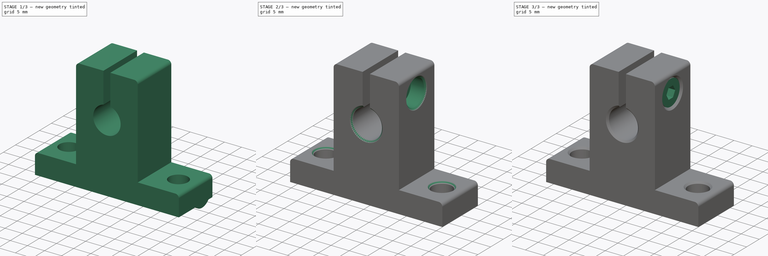
[diagram: build sequence overview — one tinted view per stage of 3, left to right]
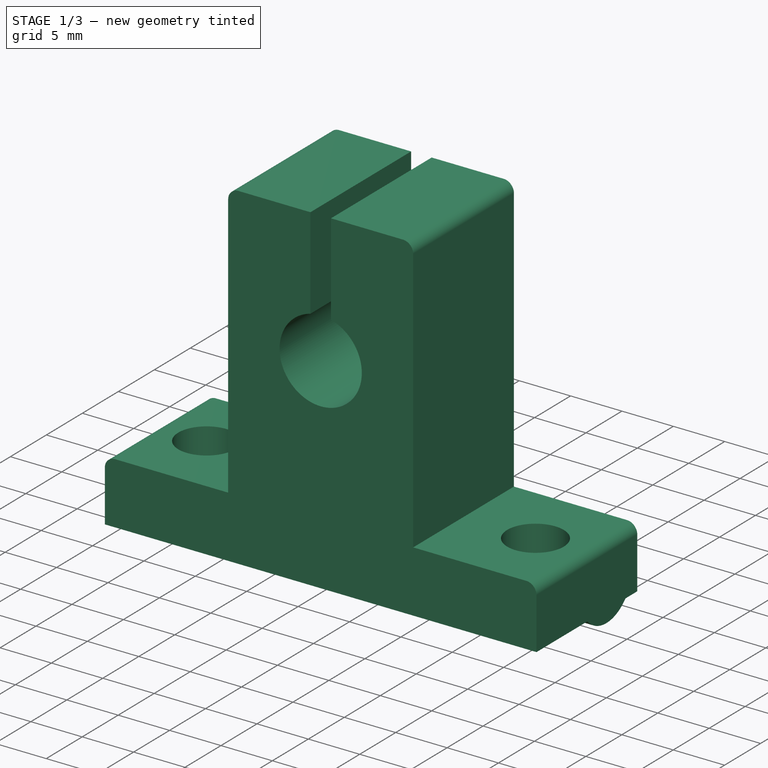
[diagram: stage 1 of 3 — iso view after this stage's code; geometry added in this stage tinted green]
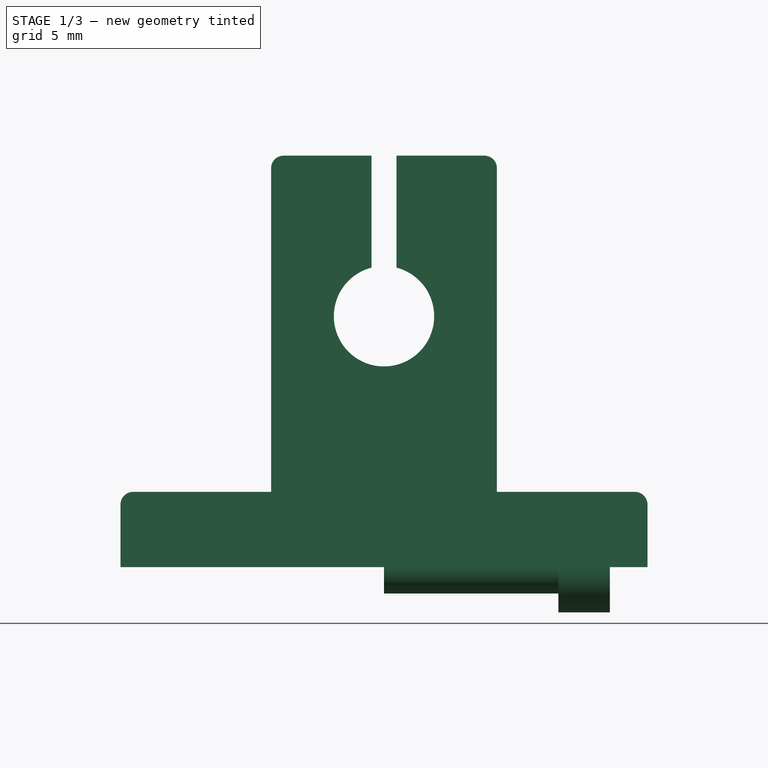
[diagram: stage 1 of 3 — front view after this stage's code; geometry added in this stage tinted green]
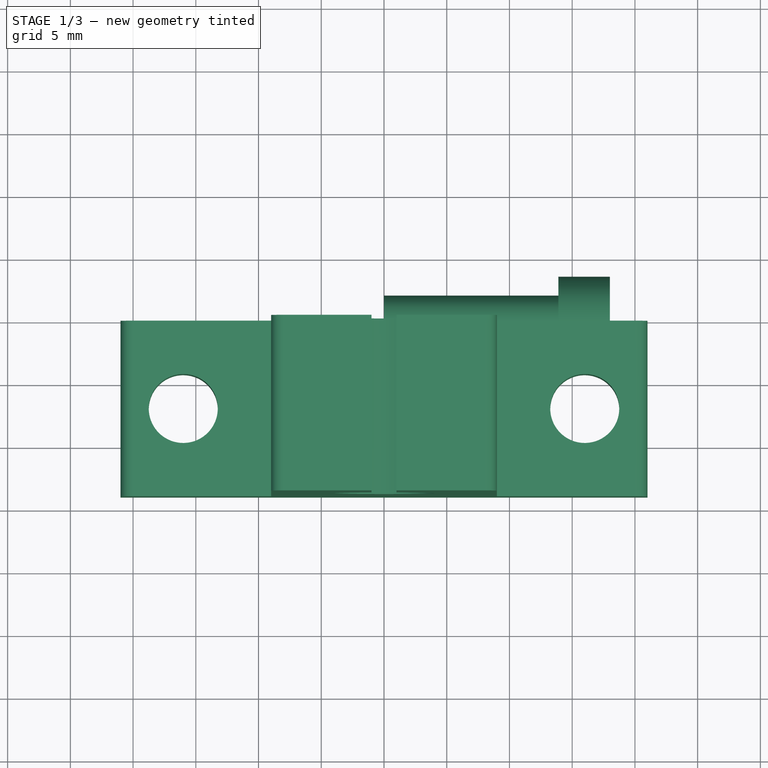
[diagram: stage 1 of 3 — top view after this stage's code; geometry added in this stage tinted green]
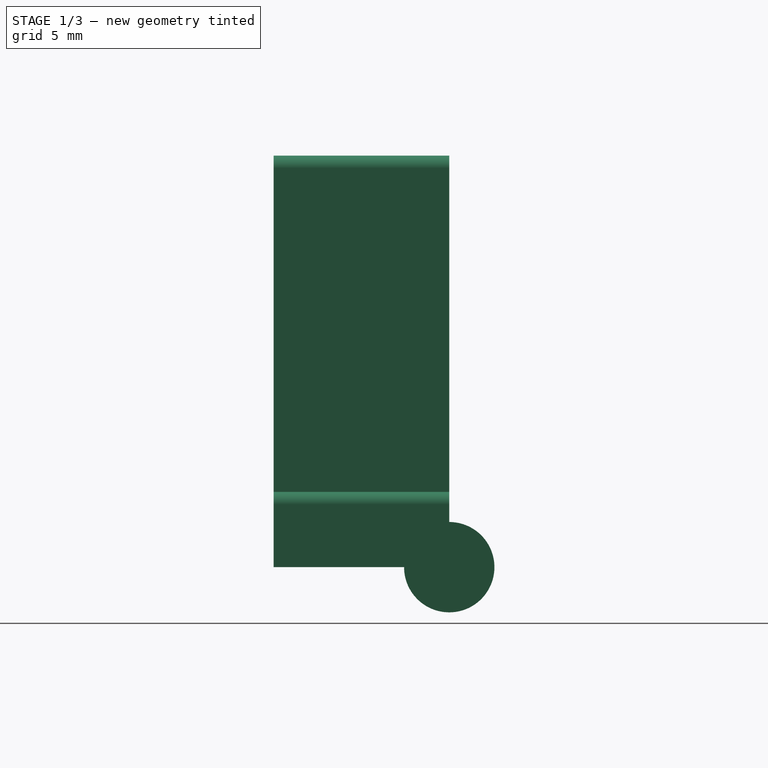
[diagram: stage 1 of 3 — right view after this stage's code; geometry added in this stage tinted green]
FCSTD DOCUMENT  (FreeCAD 0.20R)
Label: SKseries
License: Creative Commons Attribution-ShareAlike
LicenseURL: http://creativecommons.org/licenses/by-sa/4.0/
objects: Sketcher::SketchObject×5, PartDesign::Body×3, PartDesign::Pocket×2, PartDesign::Revolution×2, Spreadsheet::Sheet×1, PartDesign::Pad×1, Part::Cut×1, Part::Chamfer×1, Part::MultiFuse×1
note: 21 computed .brp shape members not serialized (recipe doc carries the construction recipe); baked Part::Feature solids carry a one-line shape summary decoded from their .brp

FEATURE [Sketcher::SketchObject] Sketch
  FullyConstrained = true
  MapMode = 5
  Placement = pos=(0,0,0) rot=(1,0,0;1.5708rad)
  Support = -> [XZ_Plane]
  expr: Constraints[19] = <<Set SK Values>>.shaftDiameter
  expr: Constraints[20] = <<Set SK Values>>.shaftHeight
  expr: Constraints[21] = <<Set SK Values>>.halftSection * 2
  expr: Constraints[28] = <<Set SK Values>>.overallHeight
  expr: Constraints[30] = <<Set SK Values>>.topWidth
  expr: Constraints[37] = <<Set SK Values>>.baseHeight
  sketch-geometry (16):
    g0: LineSegment StartX=-21 StartY=5 StartZ=0 EndX=-21 EndY=0 EndZ=0
    g1: LineSegment StartX=-21 StartY=0 StartZ=0 EndX=21 EndY=0 EndZ=0
    g2: LineSegment StartX=21 StartY=0 StartZ=0 EndX=21 EndY=5 EndZ=0
    g3: LineSegment StartX=20 StartY=6 StartZ=0 EndX=9 EndY=6 EndZ=0
    g4: LineSegment StartX=9 StartY=6 StartZ=0 EndX=9 EndY=31.8 EndZ=0
    g5: LineSegment StartX=-9 StartY=31.8 StartZ=0 EndX=-9 EndY=6 EndZ=0
    g6: LineSegment StartX=-9 StartY=6 StartZ=0 EndX=-20 EndY=6 EndZ=0
    g7: ArcOfCircle CenterX=0 CenterY=20 CenterZ=0 NormalX=0 NormalY=0 NormalZ=1 AngleXU=0 Radius=4 StartAngle=1.82348 EndAngle=7.6013
    g8: LineSegment StartX=8 StartY=32.8 StartZ=0 EndX=1 EndY=32.8 EndZ=0
    g9: LineSegment StartX=1 StartY=32.8 StartZ=0 EndX=1 EndY=23.873 EndZ=0
    g10: LineSegment StartX=-8 StartY=32.8 StartZ=0 EndX=-1 EndY=32.8 EndZ=0
    g11: LineSegment StartX=-1 StartY=32.8 StartZ=0 EndX=-1 EndY=23.873 EndZ=0
    g12: ArcOfCircle CenterX=-8 CenterY=31.8 CenterZ=0 NormalX=0 NormalY=0 NormalZ=1 AngleXU=0 Radius=1 StartAngle=1.5708 EndAngle=3.14159
    g13: ArcOfCircle CenterX=8 CenterY=31.8 CenterZ=0 NormalX=0 NormalY=0 NormalZ=1 AngleXU=0 Radius=1 StartAngle=4e-16 EndAngle=1.5708
    g14: ArcOfCircle CenterX=-20 CenterY=5 CenterZ=0 NormalX=0 NormalY=0 NormalZ=1 AngleXU=0 Radius=1 StartAngle=1.5708 EndAngle=3.14159
    g15: ArcOfCircle CenterX=20 CenterY=5 CenterZ=0 NormalX=0 NormalY=0 NormalZ=1 AngleXU=0 Radius=1 StartAngle=0 EndAngle=1.5708
  constraints (40):
    c: Vertical(g0)
    c: Coincident(g0,g1)
    c: Coincident(g1,g2)
    c: Horizontal(g3)
    c: Coincident(g3,g4)
    c: Vertical(g4)
    c: Coincident(g5,g6)
    c: Symmetric(g5,g3,g-2)
    c: Symmetric(g0,g1,g-2)
    c: PointOnObject(g0,g-1)
    c: PointOnObject(g7,g-2)
    c: Horizontal(g8)
    c: Coincident(g8,g9)
    c: Vertical(g9)
    c: Coincident(g10,g11)
    c: Vertical(g11)
    c: Symmetric(g8,g10,g-2)
    c: Coincident(g7,g9)
    c: Coincident(g7,g11)
    c: Diameter(g7) = 8
    c: DistanceY(g-1,g7) = 20
    c: DistanceX(g0,g1) = 42
    c: DistanceX(g10,g8) = 2
    c: Tangent(g5,g12) = -1.5708
    c: Tangent(g10,g12) = 1.5708
    c: Tangent(g8,g13) = -1.5708
    c: Tangent(g4,g13) = -1.5708
    c: Symmetric(g8,g10,g-2)
    c: DistanceY(g-1,g10) = 32.8
    c: Vertical(g5)
    c: DistanceX(g5,g4) = 18
    c: Diameter(g12) = 2
    c: Tangent(g0,g14) = -1.5708
    c: Tangent(g6,g14) = -1.5708
    c: Tangent(g3,g15) = -1.5708
    c: Tangent(g2,g15) = -1.5708
    c: Symmetric(g6,g3,g-2)
    c: DistanceY(g0,g6) = 6
    c: Diameter(g14) = 2
    c: Vertical(g2)
FEATURE [Spreadsheet::Sheet] Spreadsheet  label="Set SK Values"
  cells = A1=Copy the data from the column corresponding to the desired model to the "SK Values" column; A2=Copiar los datos de la columna correspondiente al modelo deseado a la columna "SK Values"; A3=Description; B3=Descripcion; C3=Parameter; D3=SK Values; E3=SK3; F3=SK4; G3=SK5; H3=SK6; I3=SK8; J3=SK10; K3=SK12; L3=SK13; M3=SK16; N3=SK20; O3=SK25; P3=SK30; Q3=SK35; R3=SK40; S3=SK50; A4=Model name; B4=Nombre del modelo; C4=Mn; D4(modelName)=SK8; E4=SK3; F4=SK4; G4=SK5; H4=SK6; I4=SK8; J4=SK10; K4=SK12; L4=SK13; M4=SK16; N4=SK20; O4=SK25; P4=SK30; Q4=SK35; R4=SK40; S4=SK50; A5=Shaft Diameter; B5=Diametro del eje; C5=SD; D5(shaftDiameter)==8mm; E5==3mm; F5==4mm; G5==5mm; H5==6mm; I5==8mm; J5==10mm; K5==12mm; L5==13mm; M5==16mm; N5==20mm; O5==25mm; P5==30mm; Q5==35mm; R5==40mm; S5==50mm; A6=Shaft height; B6=Altura del eje; C6=H; D6(shaftHeight)==20mm; E6==20mm; F6==20mm; G6==20mm; H6==20mm; I6==20mm; J6==20mm; K6==23mm; L6==23mm; M6==27mm; N6==31mm; O6==35mm; P6==42mm; Q6==50mm; R6==60mm; S6==70mm; A7=Half-section; B7=Semipieza; C7=E; D7(halftSection)==21mm; E7==21mm; F7==21mm; G7==21mm; H7==21mm; I7==21mm; J7==21mm; K7==21mm; L7==21mm; M7==24mm; N7==30mm; O7==35mm; P7==42mm; Q7==49mm; R7==57mm; S7==63mm; A8=Lengnht; B8=Grosor; C8=L; D8(lenght)==14mm; E8==14mm; F8==14mm; G8==14mm; H8==14mm; I8==14mm; J8==14mm; K8==14mm; L8==14mm; M8==16mm; N8==20mm; O8==24mm; P8==28mm; Q8==32mm; R8==36mm; S8==40mm; A9=Overall height; B9=Altura total; C9=F; D9(overallHeight)==32.8mm; E9==32.8mm; F9==32.8mm; G9==32.8mm; H9==32.8mm; I9==32.8mm; J9==32.8mm; K9==37.5mm; L9==37.5mm; M9==44mm; N9==51mm; O9==60mm; P9==70mm; Q9==82mm; R9==96mm; S9==120mm; A10=Base height; B10=Altura de la base; C10=G; D10(baseHeight)==6mm; E10==6mm; F10==6mm; G10==6mm; H10==6mm; I10==6mm; J10==6mm; K10==6mm; L10==6mm; M10==8mm; N10==10mm; O10==12mm; P10==12mm; Q10==15mm; R10==15mm; S10==18mm; A11=Ttop width; B11=Ancho superior; C11=P; D11(topWidth)==18mm; E11==18mm; F11==18mm; G11==18mm; H11==18mm; I11==18mm; J11==18mm; K11==20mm; L11==20mm; M11==25mm; N11==30mm; O11==38mm; P11==44mm; Q11==50mm; R11==60mm; S11==74mm; A12=Distance between holes; B12=Distancia entre taladros; C12=B; D12(drillDistances)==32mm; E12==32mm; F12==32mm; G12==32mm; H12==32mm; I12==32mm; J12==32mm; K12==32mm; L12==32mm; M12==38mm; N12==45mm; O12==56mm; P12==64mm; Q12==74mm; R12==90mm; S12==100mm; A13=Hole diameter; B13=Diametro taladros; C13=S; D13(drillDiameter)==5.5mm; E13==5.5mm; F13==5.5mm; G13==5.5mm; H13==5.5mm; +125 more cells
FEATURE [PartDesign::Pad] Pad
  Direction = (0,-1,2e-16)
  Length = 14
  Length2 = 10
  Placement = pos=(0,0,0) rot=(1,0,0;1.5708rad)
  Profile = -> Sketch
  ReferenceAxis = -> Sketch [N_Axis]
  Type = 0
  expr: Length = <<Set SK Values>>.lenght
FEATURE [Sketcher::SketchObject] Sketch001
  FullyConstrained = true
  MapMode = 5
  Placement = pos=(0,0,0) rot=(1,0,0;3.14159rad)
  Support = -> [Pad]
  expr: Constraints[1] = <<Set SK Values>>.lenght / 2
  expr: Constraints[2] = <<Set SK Values>>.drillDistances
  expr: Constraints[3] = <<Set SK Values>>.drillDiameter
  sketch-geometry (2):
    g0: Circle CenterX=-16 CenterY=7 CenterZ=0 NormalX=0 NormalY=0 NormalZ=1 AngleXU=0 Radius=2.75
    g1: Circle CenterX=16 CenterY=7 CenterZ=0 NormalX=0 NormalY=0 NormalZ=1 AngleXU=0 Radius=2.75
  constraints (5):
    c: Symmetric(g0,g1,g-2)
    c: DistanceY(g-1,g0) = 7
    c: DistanceX(g0,g1) = 32
    c: Diameter(g0) = 5.5
    c: Equal(g0,g1)
FEATURE [PartDesign::Pocket] Pocket
  BaseFeature = -> Pad
  Direction = (0,2e-16,1)
  Length = 0
  Length2 = 5
  Placement = pos=(0,0,0) rot=(1,0,0;1.5708rad)
  Profile = -> Sketch001
  ReferenceAxis = -> Sketch001 [N_Axis]
  Type = 1
FEATURE [PartDesign::Body] Body  label="Main Body"
  Group = -> [Sketch,Pad,Sketch001,Pocket]
  Origin = -> Origin
  Tip = -> Pocket
FEATURE [Sketcher::SketchObject] Sketch002
  FullyConstrained = true
  MapMode = 5
  Placement = pos=(0,0,0) rot=(1,0,0;1.5708rad)
  Support = -> [XZ_Plane001]
  expr: Constraints[13] = <<Set SK Values>>.screwMetric / 2 + 0.1mm
  expr: Constraints[14] = <<Set SK Values>>.screwHeadDiameter / 2 + 0.1mm
  expr: Constraints[15] = <<Set SK Values>>.screwHeadLenght + 0.1mm
  expr: Constraints[16] = <<Set SK Values>>.topWidth
  sketch-geometry (6):
    g0: LineSegment StartX=0 StartY=0 StartZ=0 EndX=0 EndY=2.1 EndZ=0
    g1: LineSegment StartX=0 StartY=2.1 StartZ=0 EndX=13.9 EndY=2.1 EndZ=0
    g2: LineSegment StartX=13.9 StartY=2.1 StartZ=0 EndX=13.9 EndY=3.6 EndZ=0
    g3: LineSegment StartX=13.9 StartY=3.6 StartZ=0 EndX=18 EndY=3.6 EndZ=0
    g4: LineSegment StartX=18 StartY=3.6 StartZ=0 EndX=18 EndY=0 EndZ=0
    g5: LineSegment StartX=18 StartY=0 StartZ=0 EndX=0 EndY=0 EndZ=0
  constraints (17):
    c: Vertical(g0)
    c: Coincident(g0,g1)
    c: Horizontal(g1)
    c: Coincident(g1,g2)
    c: Vertical(g2)
    c: Coincident(g2,g3)
    c: Horizontal(g3)
    c: Coincident(g3,g4)
    c: Vertical(g4)
    c: Coincident(g4,g5)
    c: Coincident(g5,g0)
    c: Horizontal(g5)
    c: Coincident(g-1,g0)
    c: DistanceY(g0,g0) = 2.1
    c: DistanceY(g4,g3) = 3.6
    c: DistanceX(g2,g3) = 4.1
    c: DistanceX(g5,g5) = 18
FEATURE [PartDesign::Revolution] Revolution
  Angle = 360
  Axis = (1,0,0)
  Base = (0,0,0)
  Placement = pos=(0,0,0) rot=(1,0,0;1.5708rad)
  Profile = -> Sketch002
  ReferenceAxis = -> Sketch002 [H_Axis]
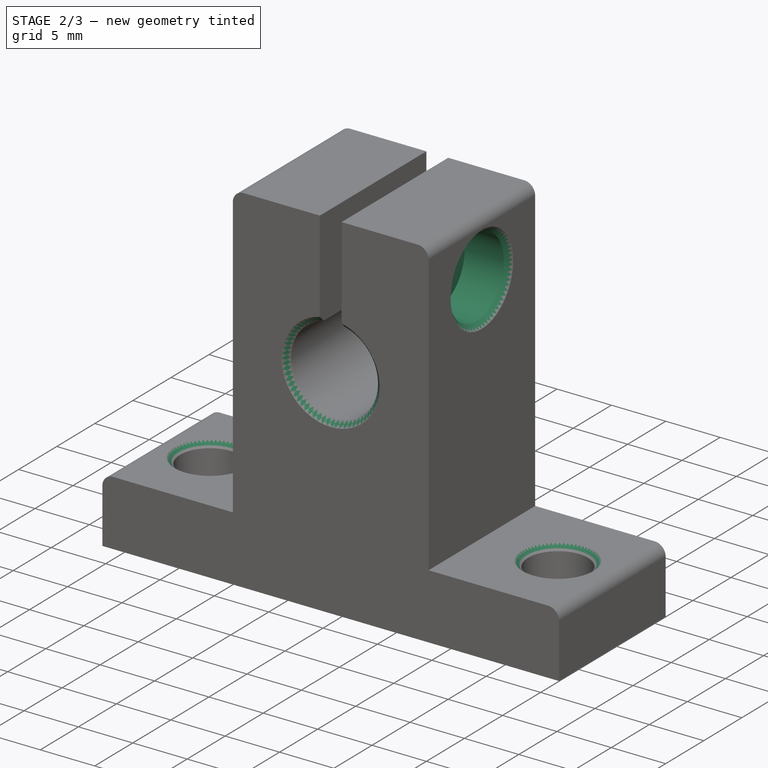
[diagram: stage 2 of 3 — iso view after this stage's code; geometry added in this stage tinted green]
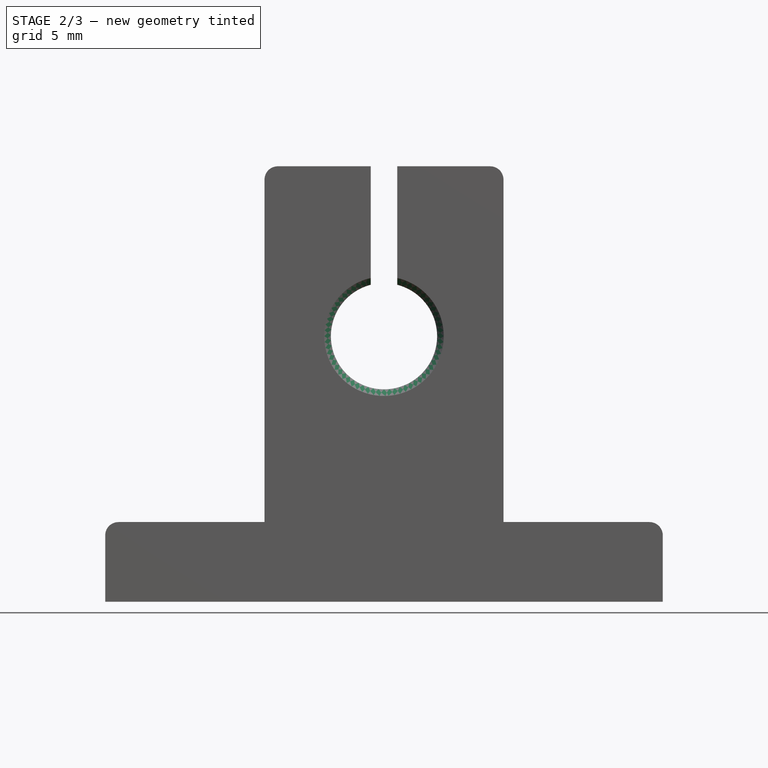
[diagram: stage 2 of 3 — front view after this stage's code; geometry added in this stage tinted green]
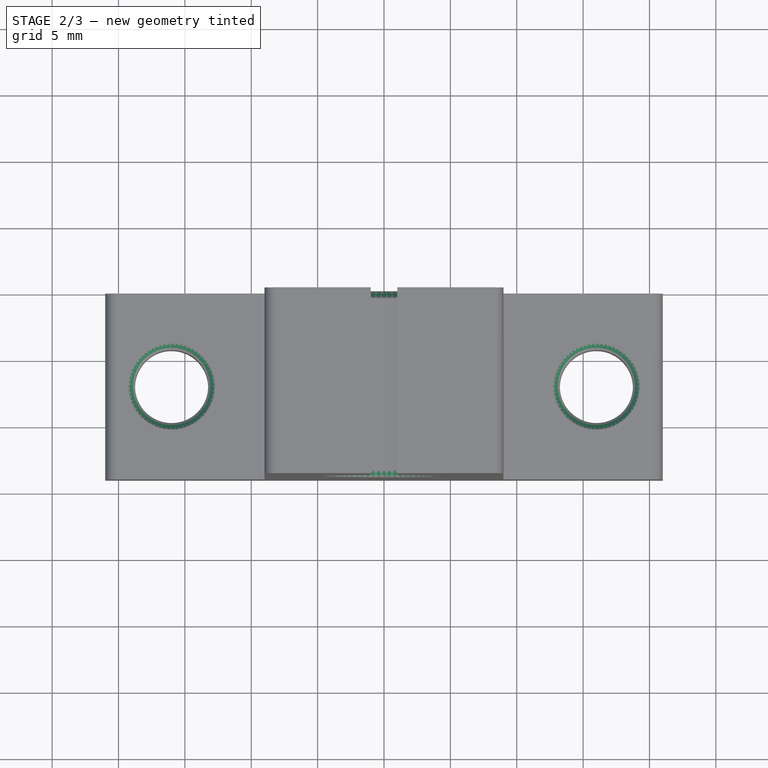
[diagram: stage 2 of 3 — top view after this stage's code; geometry added in this stage tinted green]
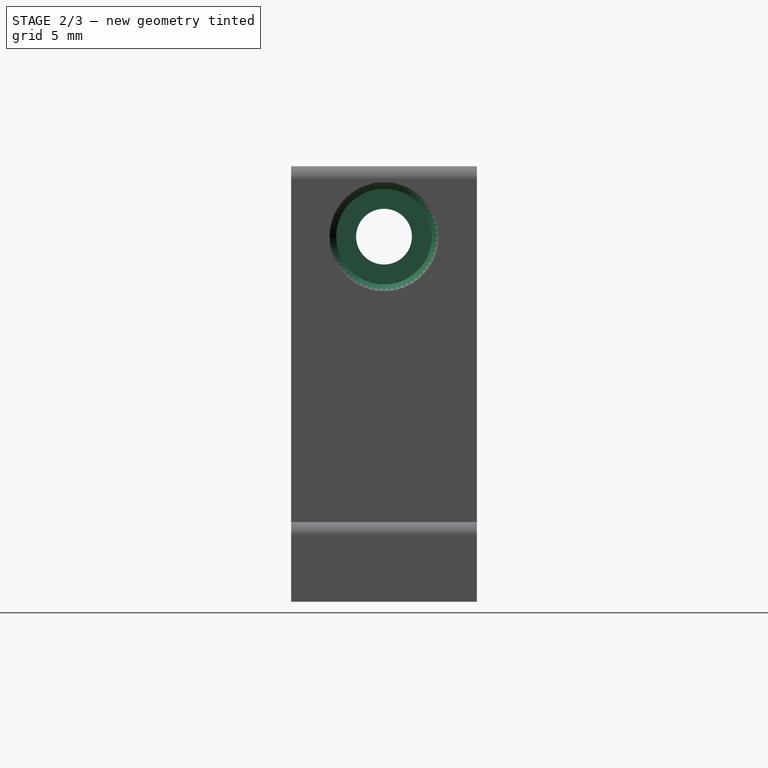
[diagram: stage 2 of 3 — right view after this stage's code; geometry added in this stage tinted green]
FEATURE [PartDesign::Body] Body002  label="Screw"
  Group = -> [Sketch003,Revolution001,Sketch004,Pocket001]
  Origin = -> Origin002
  Placement = pos=(-7.5,-7,27.5) rot=(0,0,1;0rad)
  Tip = -> Pocket001
  expr: .Placement.Base.x = (<<Set SK Values>>.topWidth / 2 - 1.5mm) * -1
  expr: .Placement.Base.y = <<Set SK Values>>.lenght / 2 * -1
  expr: .Placement.Base.z = <<Set SK Values>>.shaftHeight + <<Set SK Values>>.shaftDiameter / 2 + <<Set SK Values>>.screwHeadDiameter / 2
FEATURE [Part::Cut] Cut
  Base = -> Body
  Tool = -> Body001
FEATURE [Part::Chamfer] Chamfer
  Base = -> Cut
  Edges = 8 edges r=0.5: [Edge11,Edge23,Edge36,Edge41,Edge46,Edge47,Edge51,Edge53]
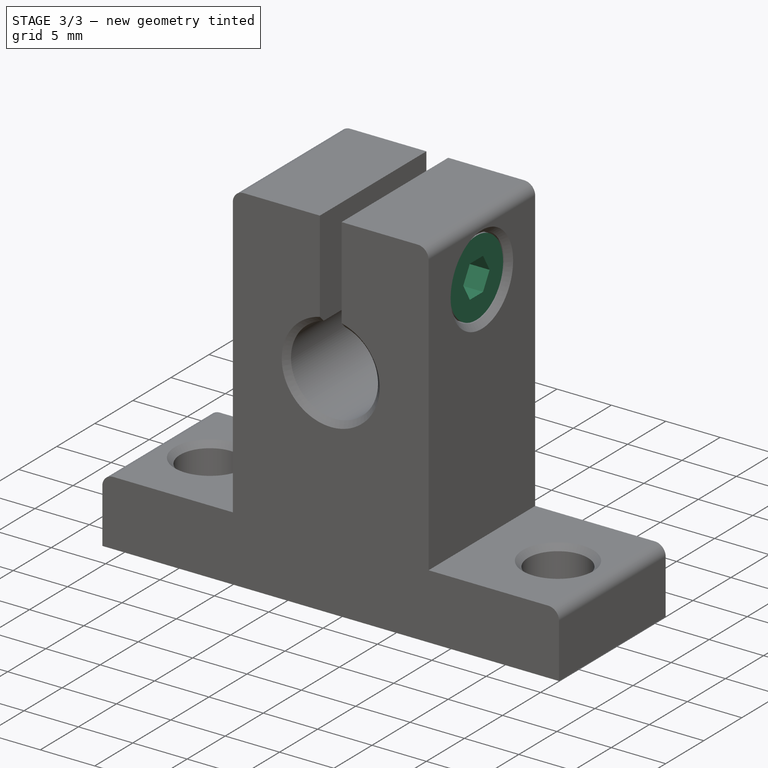
[diagram: stage 3 of 3 — iso view after this stage's code; geometry added in this stage tinted green]
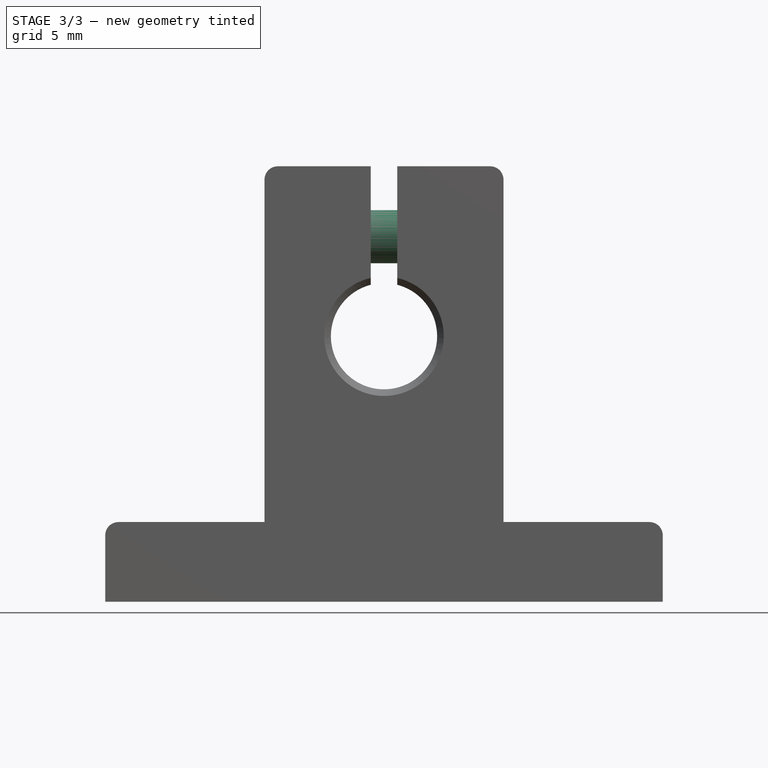
[diagram: stage 3 of 3 — front view after this stage's code; geometry added in this stage tinted green]
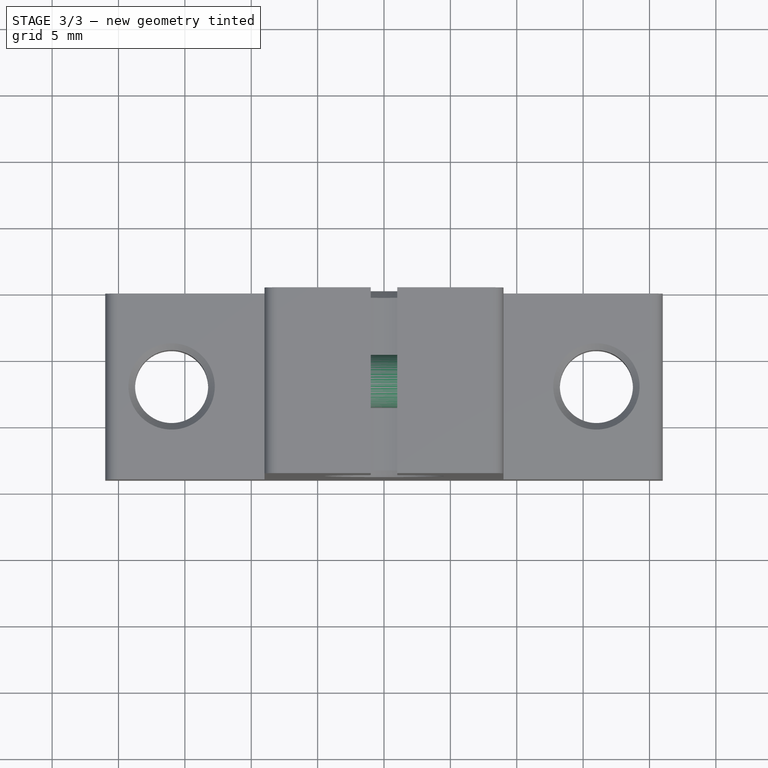
[diagram: stage 3 of 3 — top view after this stage's code; geometry added in this stage tinted green]
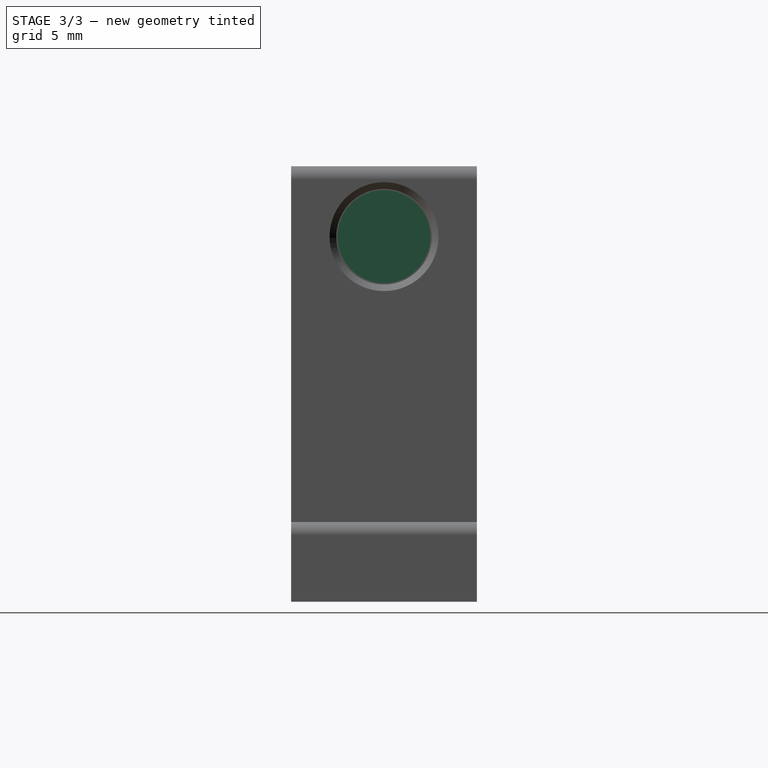
[diagram: stage 3 of 3 — right view after this stage's code; geometry added in this stage tinted green]
FEATURE [PartDesign::Body] Body001  label="Screw hole"
  Group = -> [Sketch002,Revolution]
  Origin = -> Origin001
  Placement = pos=(-9,-7,27.5) rot=(0,0,1;0rad)
  Tip = -> Revolution
  expr: .Placement.Base.x = <<Set SK Values>>.topWidth / 2 * -1
  expr: .Placement.Base.y = <<Set SK Values>>.lenght / 2 * -1
  expr: .Placement.Base.z = <<Set SK Values>>.shaftHeight + <<Set SK Values>>.shaftDiameter / 2 + <<Set SK Values>>.screwHeadDiameter / 2
FEATURE [Sketcher::SketchObject] Sketch003
  FullyConstrained = true
  MapMode = 5
  Placement = pos=(0,0,0) rot=(1,0,0;1.5708rad)
  Support = -> [XZ_Plane002]
  expr: Constraints[12] = <<Set SK Values>>.screwHeadLenght
  expr: Constraints[13] = <<Set SK Values>>.screwHeadDiameter / 2
  expr: Constraints[14] = <<Set SK Values>>.topWidth - 2mm
  expr: Constraints[17] = <<Set SK Values>>.screwMetric / 2
  expr: Constraints[18] = <<Set SK Values>>.screwMetric / 6
  expr: Constraints[19] = <<Set SK Values>>.screwMetric / 6
  sketch-geometry (7):
    g0: LineSegment StartX=0.666667 StartY=2 StartZ=0 EndX=12 EndY=2 EndZ=0
    g1: LineSegment StartX=12 StartY=2 StartZ=0 EndX=12 EndY=3.5 EndZ=0
    g2: LineSegment StartX=12 StartY=3.5 StartZ=0 EndX=16 EndY=3.5 EndZ=0
    g3: LineSegment StartX=16 StartY=3.5 StartZ=0 EndX=16 EndY=0 EndZ=0
    g4: LineSegment StartX=16 StartY=0 StartZ=0 EndX=0 EndY=0 EndZ=0
    g5: LineSegment StartX=-1.8e-15 StartY=0 StartZ=0 EndX=-1.8e-15 EndY=1.33333 EndZ=0
    g6: LineSegment StartX=-1.8e-15 StartY=1.33333 StartZ=0 EndX=0.666667 EndY=2 EndZ=0
  constraints (20):
    c: Horizontal(g0)
    c: Coincident(g0,g1)
    c: Vertical(g1)
    c: Coincident(g1,g2)
    c: Horizontal(g2)
    c: Coincident(g2,g3)
    c: Vertical(g3)
    c: Coincident(g3,g4)
    c: Horizontal(g4)
    c: Coincident(g4,g5)
    c: Vertical(g5)
    c: Coincident(g4,g-1)
    c: DistanceX(g2,g2) = 4
    c: DistanceY(g3,g3) = 3.5
    c: DistanceX(g4,g3) = 16
    c: Coincident(g5,g6)
    c: Coincident(g0,g6)
    c: DistanceY(g4,g0) = 2
    c: DistanceX(g5,g0) = 0.666667
    c: DistanceY(g5,g0) = 0.666667
FEATURE [PartDesign::Revolution] Revolution001
  Angle = 360
  Axis = (1,0,0)
  Base = (0,0,0)
  Placement = pos=(0,0,0) rot=(1,0,0;1.5708rad)
  Profile = -> Sketch003
  ReferenceAxis = -> Sketch003 [H_Axis]
FEATURE [Sketcher::SketchObject] Sketch004
  FullyConstrained = true
  MapMode = 5
  Placement = pos=(16,0,0) rot=(0.707107,0,0.707107;3.14159rad)
  Support = -> [Revolution001]
  expr: Constraints[17] = <<Set SK Values>>.allenKey
  sketch-geometry (7):
    g0: LineSegment StartX=1.5 StartY=-0.866025 StartZ=0 EndX=1.5 EndY=0.866025 EndZ=0
    g1: LineSegment StartX=1.5 StartY=0.866025 StartZ=0 EndX=-1.9693e-12 EndY=1.73205 EndZ=0
    g2: LineSegment StartX=-1.9693e-12 StartY=1.73205 StartZ=0 EndX=-1.5 EndY=0.866025 EndZ=0
    g3: LineSegment StartX=-1.5 StartY=0.866025 StartZ=0 EndX=-1.5 EndY=-0.866025 EndZ=0
    g4: LineSegment StartX=-1.5 StartY=-0.866025 StartZ=0 EndX=-9.459e-13 EndY=-1.73205 EndZ=0
    g5: LineSegment StartX=-9.458e-13 StartY=-1.73205 StartZ=0 EndX=1.5 EndY=-0.866025 EndZ=0
    g6: Circle CenterX=0 CenterY=0 CenterZ=0 NormalX=0 NormalY=0 NormalZ=1 AngleXU=0 Radius=1.73205
  constraints (16):
    c: Coincident(g0,g1)
    c: Coincident(g1,g2)
    c: Coincident(g2,g3)
    c: Coincident(g3,g4)
    c: Coincident(g4,g5)
    c: Coincident(g5,g0)
    c: Equal(g0, g1-g5) x5
    c: PointOnObject(g0,g6)
    c: PointOnObject(g1,g6)
    c: PointOnObject(g2,g6)
    c: PointOnObject(g3,g6)
    c: PointOnObject(g4,g6)
    c: PointOnObject(g5,g6)
    c: DistanceX(g3,g0) = 3
    c: Vertical(g0)
    c: Coincident(g-1,g6)
FEATURE [PartDesign::Pocket] Pocket001
  BaseFeature = -> Revolution001
  Direction = (-1,0,2e-16)
  Length = 2
  Length2 = 5
  Placement = pos=(0,0,0) rot=(1,0,0;1.5708rad)
  Profile = -> Sketch004
  ReferenceAxis = -> Sketch004 [N_Axis]
  Type = 0
  expr: Length = <<Set SK Values>>.keyDepth
FEATURE [Part::MultiFuse] Fusion  label="SK8"
  Shapes = -> [Body002,Chamfer]
  expr: Label = <<Set SK Values>>.modelName
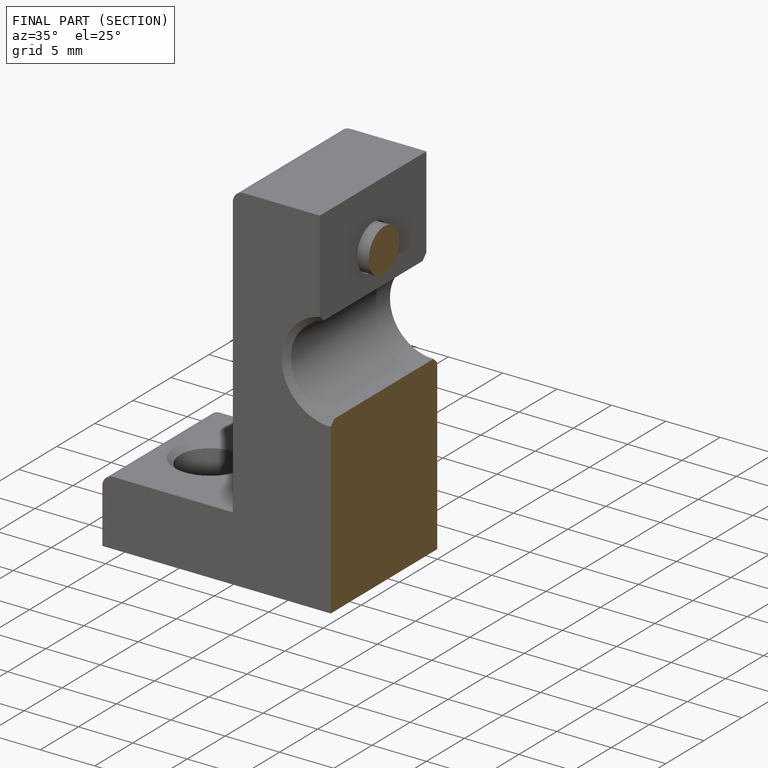
[diagram: finished part — half-section view (interior)]
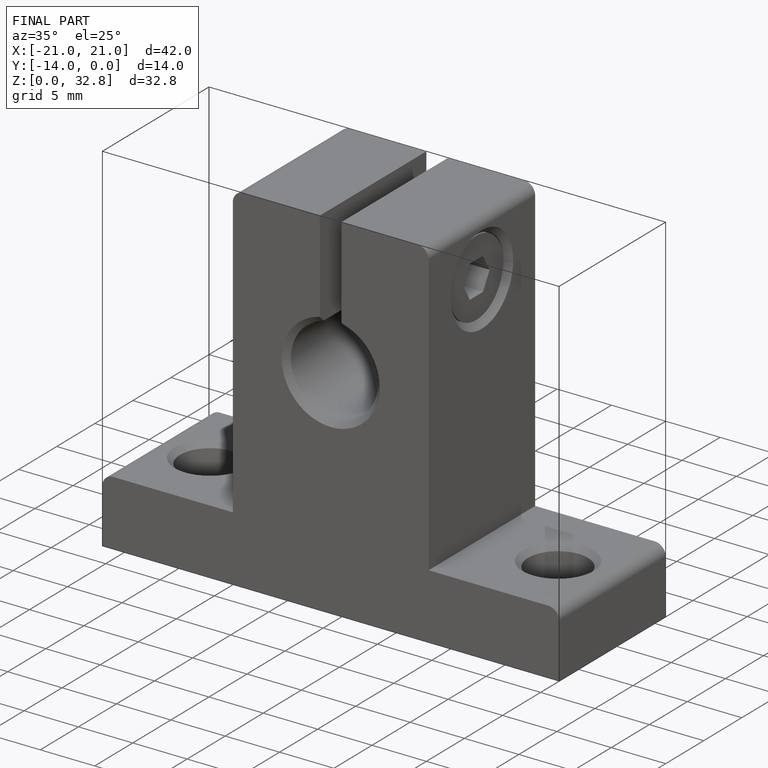
[diagram: finished part — iso view with bounding-box wireframe]
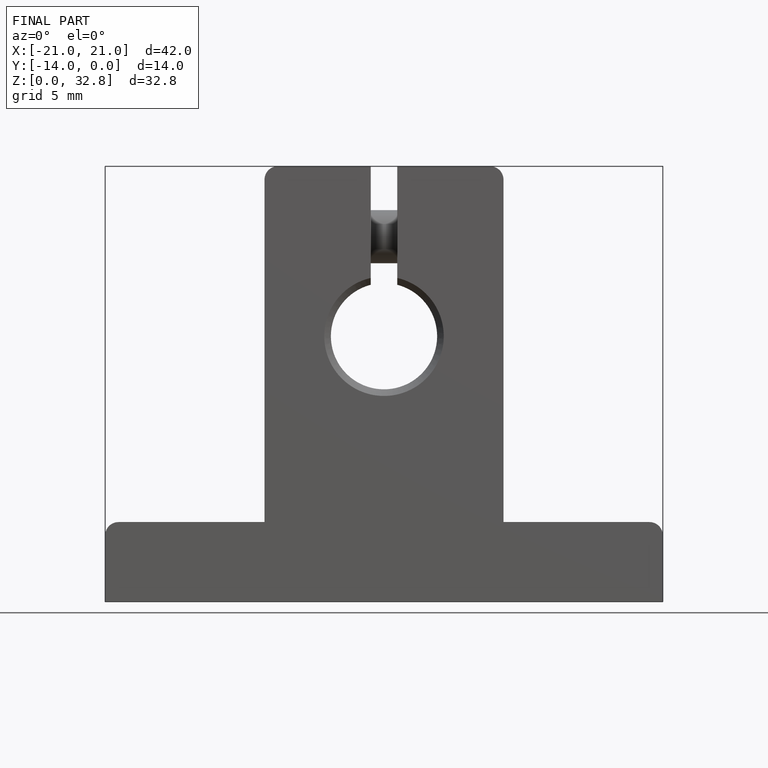
[diagram: finished part — front view with bounding-box wireframe]
